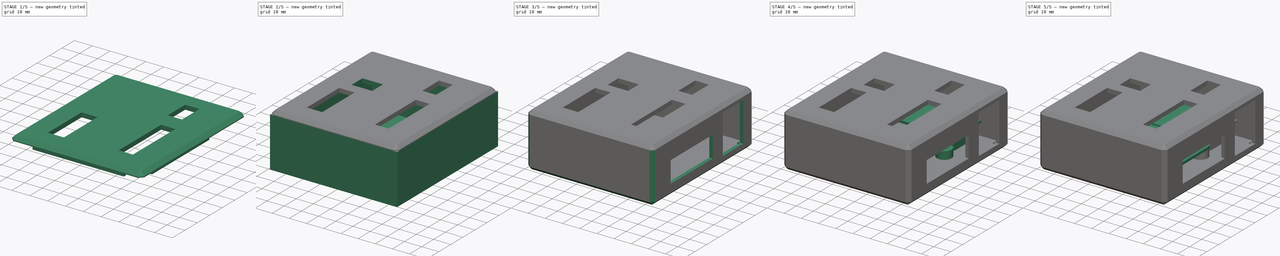
[diagram: build sequence overview — one tinted view per stage of 5, left to right]
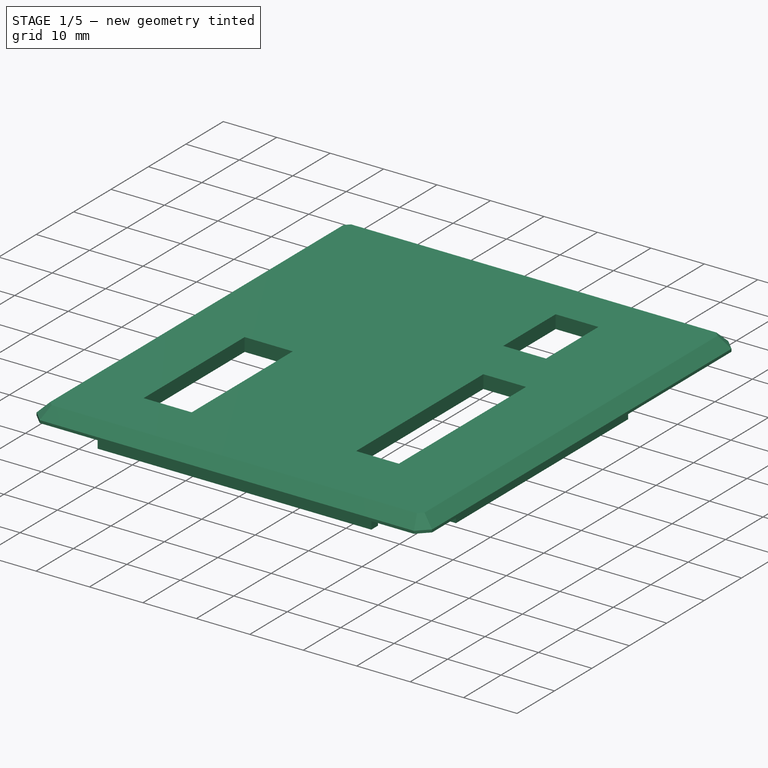
[diagram: stage 1 of 5 — iso view after this stage's code; geometry added in this stage tinted green]
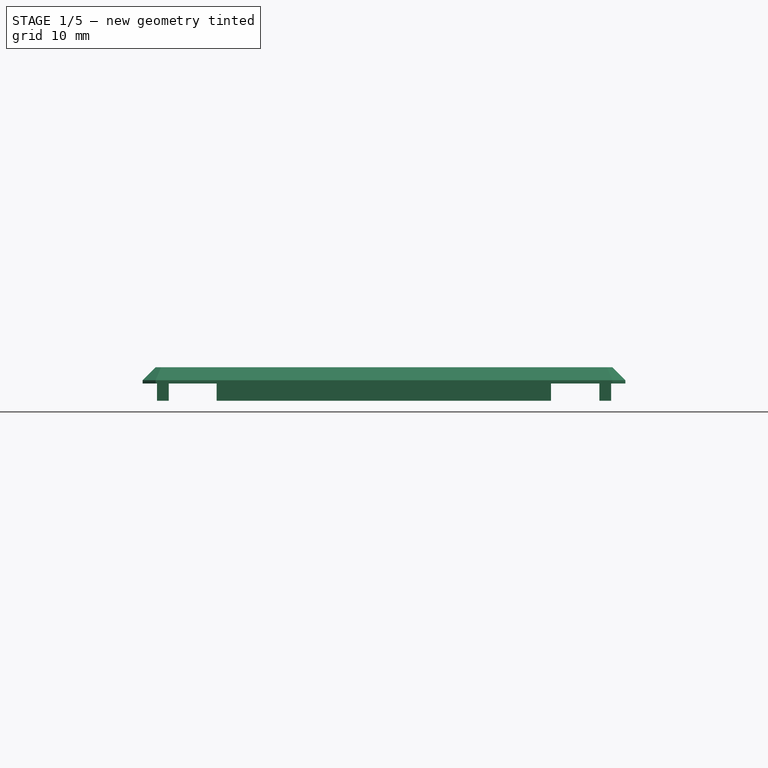
[diagram: stage 1 of 5 — front view after this stage's code; geometry added in this stage tinted green]
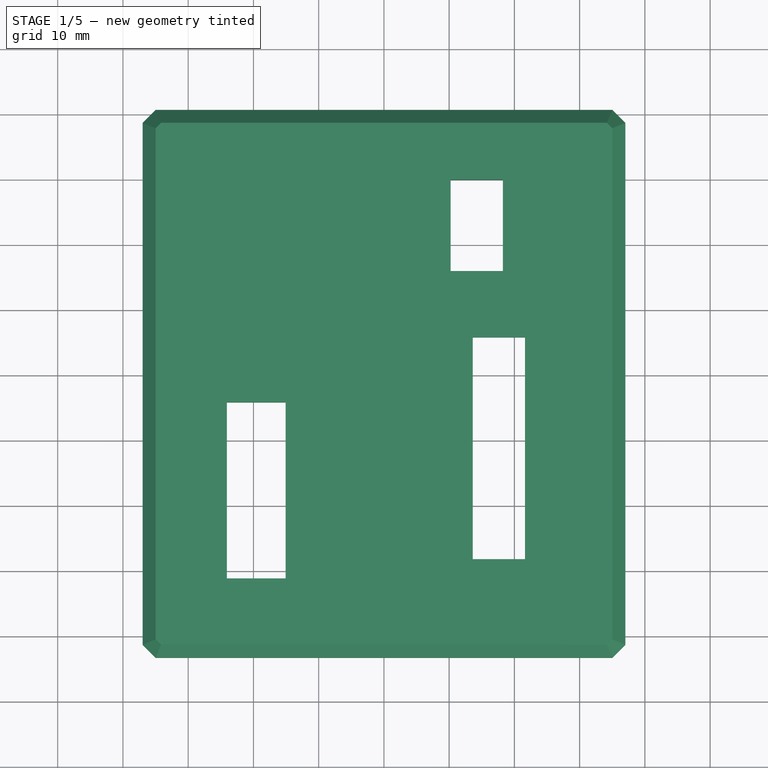
[diagram: stage 1 of 5 — top view after this stage's code; geometry added in this stage tinted green]
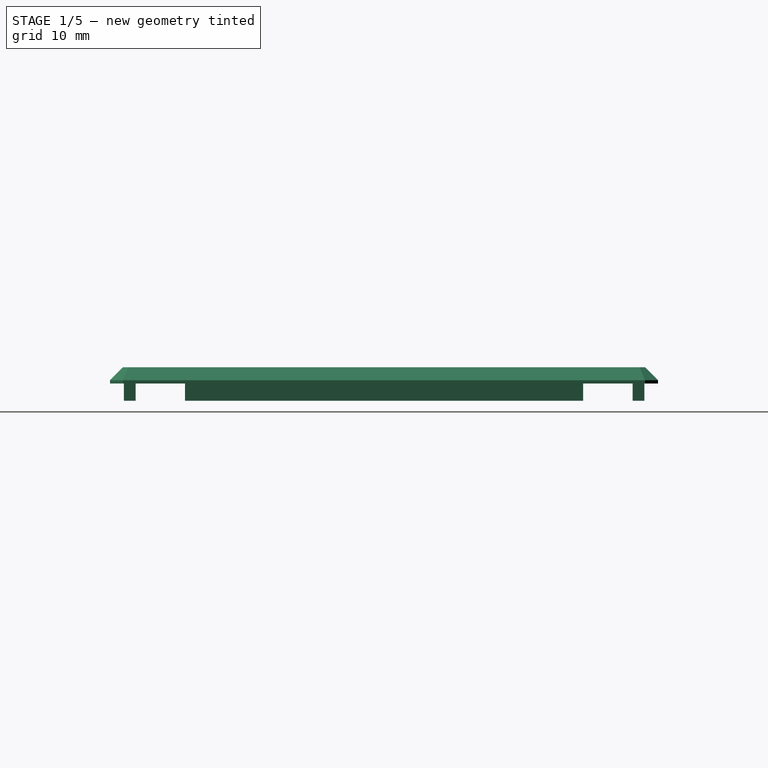
[diagram: stage 1 of 5 — right view after this stage's code; geometry added in this stage tinted green]
FCSTD DOCUMENT  (FreeCAD 0.16R5850 (Git))
Label: chillerModule
License: CreativeCommons Attribution-ShareAlike
LicenseURL: http://creativecommons.org/licenses/by-sa/4.0/
objects: Sketcher::SketchObject×15, PartDesign::Pad×10, Part::Feature×10, PartDesign::Pocket×5, Part::Box×2, PartDesign::Chamfer×2, Part::Thickness×1, Part::Cut×1
note: 61 computed .brp shape members not serialized (recipe doc carries the construction recipe); baked Part::Feature solids carry a one-line shape summary decoded from their .brp

FEATURE [PartDesign::Pad] Pad006
  Length = 2.5
  Length2 = 100
  Placement = pos=(0,0,21) rot=(0,0,1;0rad)
  Sketch = -> Sketch004
  Type = 0
FEATURE [PartDesign::Chamfer] Chamfer001
  Base = -> Pad006 [Edge22,Edge4,Edge7,Edge10,Edge13,Edge16,Edge19,Edge24]
  Placement = pos=(0,0,21) rot=(0,0,1;0rad)
  Size = 2
FEATURE [Sketcher::SketchObject] Sketch006
  Placement = pos=(0,0,23.5) rot=(0,0,1;0rad)
  Support = -> Chamfer001 [Face8]
  sketch-geometry (12):
    g0: LineSegment StartX=10.2266 StartY=39.9616 StartZ=0 EndX=18.2266 EndY=39.9616 EndZ=0
    g1: LineSegment StartX=18.2266 StartY=39.9616 StartZ=0 EndX=18.2266 EndY=25.9616 EndZ=0
    g2: LineSegment StartX=18.2266 StartY=25.9616 StartZ=0 EndX=10.2266 EndY=25.9616 EndZ=0
    g3: LineSegment StartX=10.2266 StartY=25.9616 StartZ=0 EndX=10.2266 EndY=39.9616 EndZ=0
    g4: LineSegment StartX=13.6191 StartY=15.7904 StartZ=0 EndX=21.6191 EndY=15.7904 EndZ=0
    g5: LineSegment StartX=21.6191 StartY=15.7904 StartZ=0 EndX=21.6191 EndY=-18.2096 EndZ=0
    g6: LineSegment StartX=21.6191 StartY=-18.2096 StartZ=0 EndX=13.6191 EndY=-18.2096 EndZ=0
    g7: LineSegment StartX=13.6191 StartY=-18.2096 StartZ=0 EndX=13.6191 EndY=15.7904 EndZ=0
    g8: LineSegment StartX=-24.0652 StartY=5.83576 StartZ=0 EndX=-15.0652 EndY=5.83576 EndZ=0
    g9: LineSegment StartX=-15.0652 StartY=5.83576 StartZ=0 EndX=-15.0652 EndY=-21.1642 EndZ=0
    g10: LineSegment StartX=-15.0652 StartY=-21.1642 StartZ=0 EndX=-24.0652 EndY=-21.1642 EndZ=0
    g11: LineSegment StartX=-24.0652 StartY=-21.1642 StartZ=0 EndX=-24.0652 EndY=5.83576 EndZ=0
  constraints (35):
    c: Coincident(g0,g1)
    c: Coincident(g1,g2)
    c: Coincident(g2,g3)
    c: Coincident(g3,g0)
    c: Horizontal(g0)
    c: Horizontal(g2)
    c: Vertical(g1)
    c: Vertical(g3)
    c: Coincident(g4,g5)
    c: Coincident(g5,g6)
    c: Coincident(g6,g7)
    c: Coincident(g7,g4)
    c: Horizontal(g4)
    c: Horizontal(g6)
    c: Vertical(g5)
    c: Vertical(g7)
    c: Equal(g4,g2)
    c: DistanceX(g6) = -8
    c: DistanceY(g1) = -14
    c: DistanceX(g2) = 10.2266
    c: DistanceY(g2) = 25.9616
    c: DistanceY(g5) = -34
    c: DistanceX(g4) = 13.6191
    c: DistanceY(g4) = 15.7904
    c: Coincident(g8,g9)
    c: Coincident(g9,g10)
    c: Coincident(g10,g11)
    c: Coincident(g11,g8)
    c: Horizontal(g8)
    c: Horizontal(g10)
    c: Vertical(g9)
    c: Vertical(g11)
    c: DistanceY(g9) = -27
    c: DistanceX(g8) = 9
    c: DistanceY(g8) = 5.83576
FEATURE [PartDesign::Pocket] Pocket001
  Length = 5
  Placement = pos=(0,0,21) rot=(0,0,1;0rad)
  Sketch = -> Sketch006
  Type = 0
FEATURE [PartDesign::Pad] Pad007
  Length = 2.65
  Length2 = 100
  Placement = pos=(0,0,21) rot=(0,0,1;0rad)
  Sketch = -> Sketch008
  Type = 0
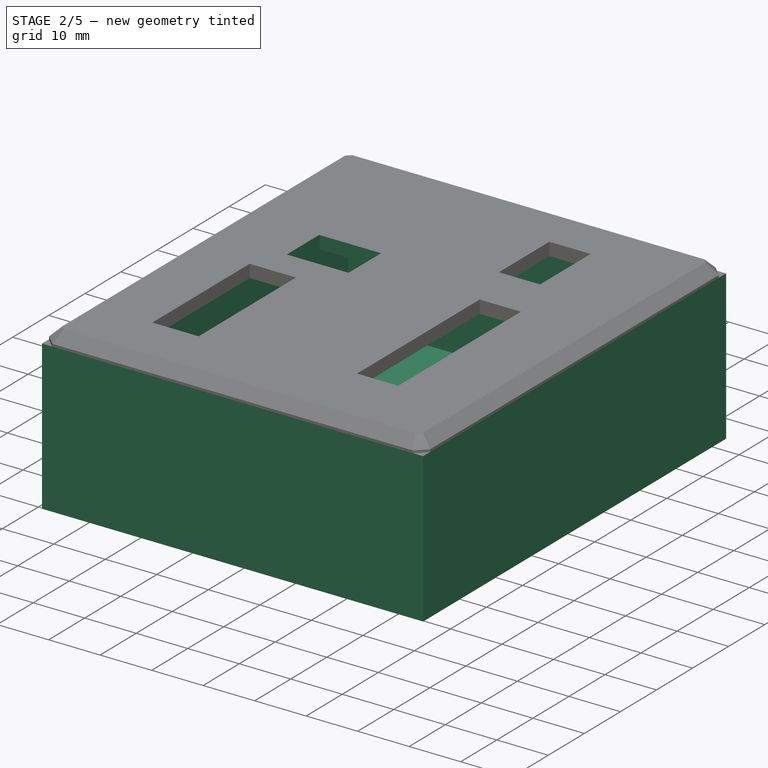
[diagram: stage 2 of 5 — iso view after this stage's code; geometry added in this stage tinted green]
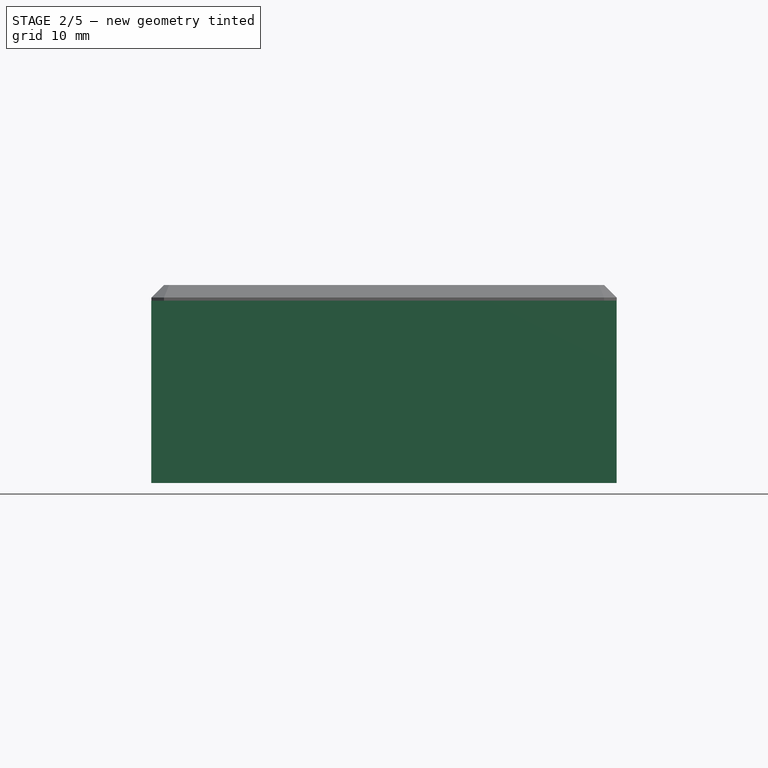
[diagram: stage 2 of 5 — front view after this stage's code; geometry added in this stage tinted green]
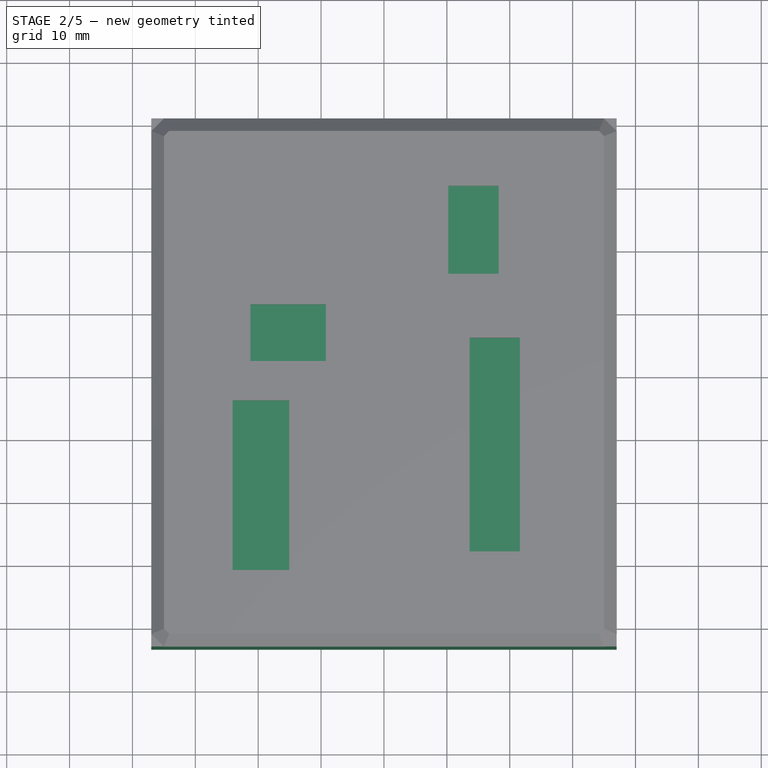
[diagram: stage 2 of 5 — top view after this stage's code; geometry added in this stage tinted green]
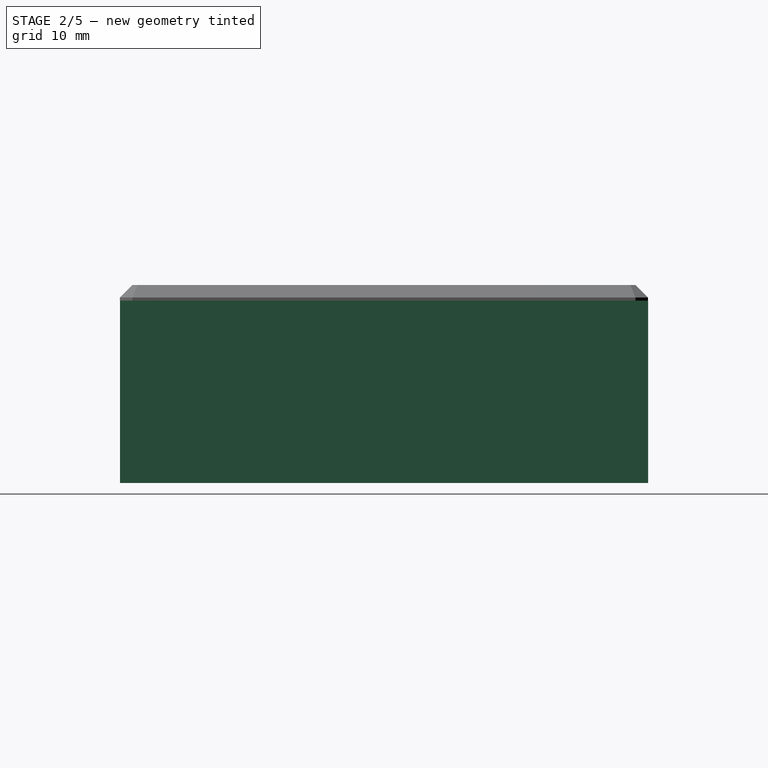
[diagram: stage 2 of 5 — right view after this stage's code; geometry added in this stage tinted green]
FEATURE [Part::Feature] Shape008
  Placement = pos=(14.5066,32.854,9.46815) rot=(0,0,1;0rad)
  shape: bbox 8.348 x 10.6 x 13.8 mm, 106 faces, 5 solids (baked)
FEATURE [Sketcher::SketchObject] Sketch003
  Placement = pos=(0,0,-6) rot=(0,0,1;0rad)
  sketch-geometry (4):
    g0: LineSegment StartX=-35 StartY=48.7097 StartZ=0 EndX=35 EndY=48.7097 EndZ=0
    g1: LineSegment StartX=35 StartY=48.7097 StartZ=0 EndX=35 EndY=-31.2903 EndZ=0
    g2: LineSegment StartX=35 StartY=-31.2903 StartZ=0 EndX=-35 EndY=-31.2903 EndZ=0
    g3: LineSegment StartX=-35 StartY=-31.2903 StartZ=0 EndX=-35 EndY=48.7097 EndZ=0
  constraints (12):
    c: Coincident(g0,g1)
    c: Coincident(g1,g2)
    c: Coincident(g2,g3)
    c: Coincident(g3,g0)
    c: Horizontal(g0)
    c: Horizontal(g2)
    c: Vertical(g1)
    c: Vertical(g3)
    c: Symmetric(g1,g2,g-2)
    c: DistanceX(g2) = -70
    c: DistanceY(g1) = -80
    c: DistanceY(g0) = 48.7097
FEATURE [PartDesign::Pad] Pad003
  Length = 27
  Length2 = 100
  Placement = pos=(0,0,-6) rot=(0,0,1;0rad)
  Sketch = -> Sketch003
  Type = 0
FEATURE [Part::Thickness] Thickness
  Faces = -> Pad003 [Face6]
  Intersection = false
  Join = 2
  Mode = 0
  SelfIntersection = false
  Value = 2
FEATURE [Sketcher::SketchObject] Sketch009
  ExternalGeometry = -> [Pad007]
  Placement = pos=(0,0,18.35) rot=(1,0,0;3.14159rad)
  Support = -> Pad007 [Face49]
  sketch-geometry (16):
    g0: LineSegment StartX=-25.6473 StartY=31.877 StartZ=0 EndX=25.5527 EndY=31.877 EndZ=0
    g1: LineSegment StartX=25.5527 StartY=31.877 StartZ=0 EndX=25.5527 EndY=31.177 EndZ=0
    g2: LineSegment StartX=25.5527 StartY=31.177 StartZ=0 EndX=-25.6473 EndY=31.177 EndZ=0
    g3: LineSegment StartX=-25.6473 StartY=31.177 StartZ=0 EndX=-25.6473 EndY=31.877 EndZ=0
    g4: LineSegment StartX=34.8248 StartY=21.8087 StartZ=0 EndX=35.5248 EndY=21.8087 EndZ=0
    g5: LineSegment StartX=35.5248 StartY=21.8087 StartZ=0 EndX=35.5248 EndY=-24.1913 EndZ=0
    g6: LineSegment StartX=35.5248 StartY=-24.1913 StartZ=0 EndX=34.8248 EndY=-24.1913 EndZ=0
    g7: LineSegment StartX=34.8248 StartY=-24.1913 StartZ=0 EndX=34.8248 EndY=21.8087 EndZ=0
    g8: LineSegment StartX=-25.5983 StartY=-48.5941 StartZ=0 EndX=25.6017 EndY=-48.5941 EndZ=0
    g9: LineSegment StartX=25.6017 StartY=-48.5941 StartZ=0 EndX=25.6017 EndY=-49.2941 EndZ=0
    g10: LineSegment StartX=25.6017 StartY=-49.2941 StartZ=0 EndX=-25.5983 EndY=-49.2941 EndZ=0
    g11: LineSegment StartX=-25.5983 StartY=-49.2941 StartZ=0 EndX=-25.5983 EndY=-48.5941 EndZ=0
    g12: LineSegment StartX=-35.481 StartY=21.7889 StartZ=0 EndX=-34.781 EndY=21.7889 EndZ=0
    g13: LineSegment StartX=-34.781 StartY=21.7889 StartZ=0 EndX=-34.781 EndY=-39.2111 EndZ=0
    g14: LineSegment StartX=-34.781 StartY=-39.2111 StartZ=0 EndX=-35.481 EndY=-39.2111 EndZ=0
    g15: LineSegment StartX=-35.481 StartY=-39.2111 StartZ=0 EndX=-35.481 EndY=21.7889 EndZ=0
  constraints (44):
    c: Coincident(g0,g1)
    c: Coincident(g1,g2)
    c: Coincident(g2,g3)
    c: Coincident(g3,g0)
    c: Horizontal(g0)
    c: Horizontal(g2)
    c: Vertical(g1)
    c: Vertical(g3)
    c: Coincident(g1,g-3)
    c: Coincident(g4,g5)
    c: Coincident(g5,g6)
    c: Coincident(g6,g7)
    c: Coincident(g7,g4)
    c: Horizontal(g4)
    c: Horizontal(g6)
    c: Vertical(g5)
    c: Vertical(g7)
    c: Coincident(g8,g9)
    c: Coincident(g9,g10)
    c: Coincident(g10,g11)
    c: Coincident(g11,g8)
    c: Horizontal(g8)
    c: Horizontal(g10)
    c: Vertical(g9)
    c: Vertical(g11)
    c: Coincident(g12,g13)
    c: Coincident(g13,g14)
    c: Coincident(g14,g15)
    c: Coincident(g15,g12)
    c: Horizontal(g12)
    c: Horizontal(g14)
    c: Vertical(g13)
    c: Vertical(g15)
    c: Coincident(g-5,g4)
    c: Coincident(g6,g-5)
    c: Coincident(g8,g-6)
    c: Coincident(g8,g-6)
    c: Coincident(g12,g-4)
    c: Coincident(g13,g-4)
    c: Coincident(g2,g-3)
    c: Equal(g3,g4)
    c: Equal(g4,g9)
    c: Equal(g9,g14)
    c: DistanceY(g3) = 0.7
FEATURE [PartDesign::Pad] Pad008  label="chillerModule_cap"
  Length = 1.2
  Length2 = 100
  Placement = pos=(0,0,21) rot=(0,0,1;0rad)
  Reversed = true
  Sketch = -> Sketch009
  Type = 0
FEATURE [Sketcher::SketchObject] Sketch014
  Placement = pos=(0,0,23.5) rot=(0,0,1;0rad)
  Support = -> Pad008 [Face8]
  sketch-geometry (4):
    g0: LineSegment StartX=-21.2387 StartY=21.0837 StartZ=0 EndX=-9.23874 EndY=21.0837 EndZ=0
    g1: LineSegment StartX=-9.23874 StartY=21.0837 StartZ=0 EndX=-9.23874 EndY=12.0837 EndZ=0
    g2: LineSegment StartX=-9.23874 StartY=12.0837 StartZ=0 EndX=-21.2387 EndY=12.0837 EndZ=0
    g3: LineSegment StartX=-21.2387 StartY=12.0837 StartZ=0 EndX=-21.2387 EndY=21.0837 EndZ=0
  constraints (12):
    c: Coincident(g0,g1)
    c: Coincident(g1,g2)
    c: Coincident(g2,g3)
    c: Coincident(g3,g0)
    c: Horizontal(g0)
    c: Horizontal(g2)
    c: Vertical(g1)
    c: Vertical(g3)
    c: DistanceY(g1) = -9
    c: DistanceX(g0) = 12
    c: DistanceX(g0) = -21.2387
    c: DistanceY(g2) = 12.0837
FEATURE [PartDesign::Pocket] Pocket004  label="chillerModule_CAP"
  Length = 5
  Placement = pos=(0,0,21) rot=(0,0,1;0rad)
  Sketch = -> Sketch014
  Type = 0
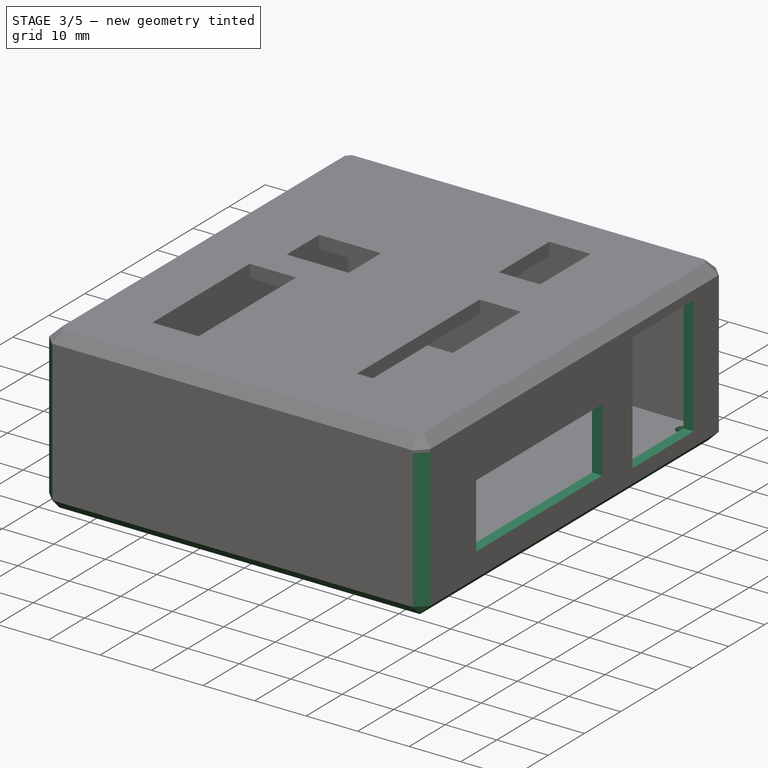
[diagram: stage 3 of 5 — iso view after this stage's code; geometry added in this stage tinted green]
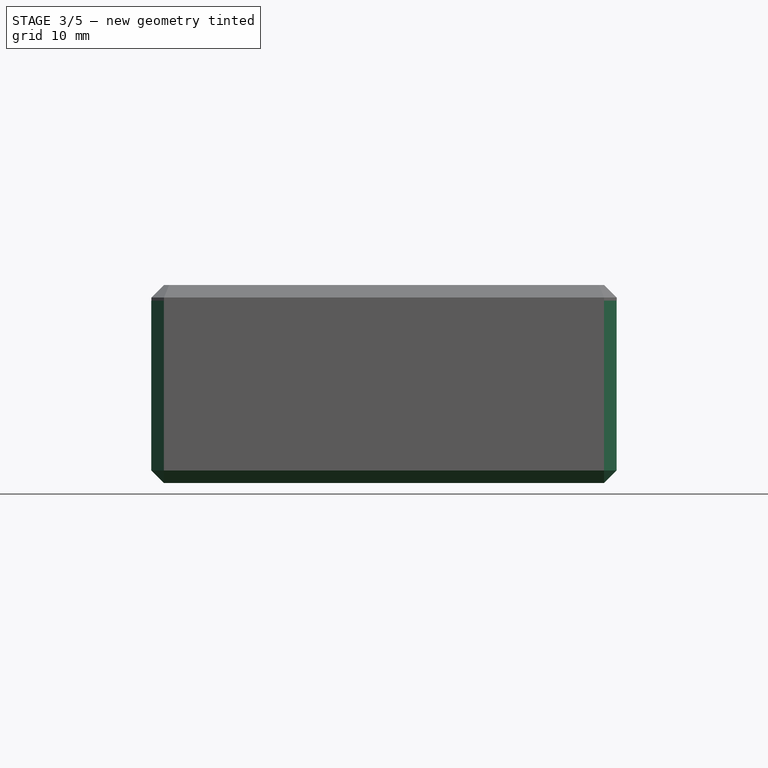
[diagram: stage 3 of 5 — front view after this stage's code; geometry added in this stage tinted green]
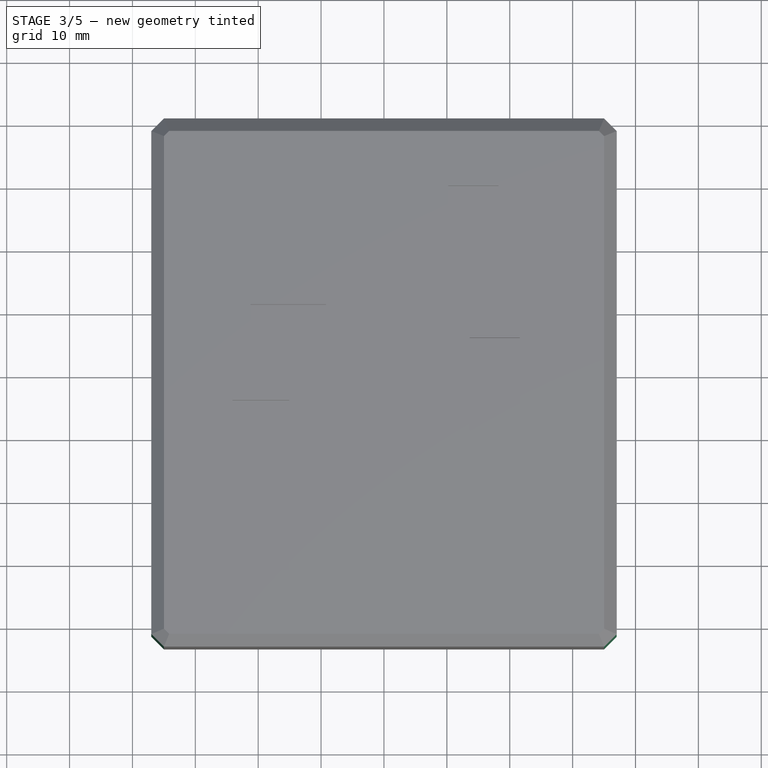
[diagram: stage 3 of 5 — top view after this stage's code; geometry added in this stage tinted green]
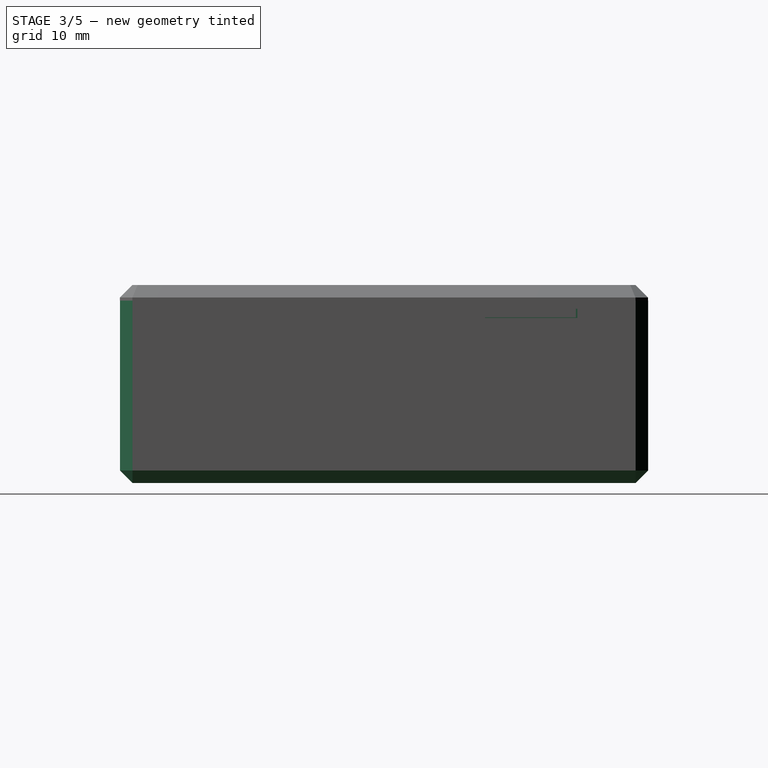
[diagram: stage 3 of 5 — right view after this stage's code; geometry added in this stage tinted green]
FEATURE [Sketcher::SketchObject] Sketch004
  Placement = pos=(0,0,21) rot=(0,0,1;0rad)
  sketch-geometry (8):
    g0: LineSegment StartX=-34.9868 StartY=50.6837 StartZ=0 EndX=35.0132 EndY=50.6837 EndZ=0
    g1: LineSegment StartX=37.0132 StartY=48.6837 StartZ=0 EndX=37.0132 EndY=-31.3163 EndZ=0
    g2: LineSegment StartX=35.0132 StartY=-33.3163 StartZ=0 EndX=-34.9868 EndY=-33.3163 EndZ=0
    g3: LineSegment StartX=-36.9868 StartY=-31.3163 StartZ=0 EndX=-36.9868 EndY=48.6837 EndZ=0
    g4: LineSegment StartX=-36.9868 StartY=48.6837 StartZ=0 EndX=-34.9868 EndY=50.6837 EndZ=0
    g5: LineSegment StartX=35.0132 StartY=50.6837 StartZ=0 EndX=37.0132 EndY=48.6837 EndZ=0
    g6: LineSegment StartX=37.0132 StartY=-31.3163 StartZ=0 EndX=35.0132 EndY=-33.3163 EndZ=0
    g7: LineSegment StartX=-36.9868 StartY=-31.3163 StartZ=0 EndX=-34.9868 EndY=-33.3163 EndZ=0
  constraints (25):
    c: Vertical(g1)
    c: Vertical(g3)
    c: DistanceX(g0) = 70
    c: DistanceY(g1) = -80
    c: DistanceX(g2) = 35.0132
    c: DistanceY(g2) = -33.3163
    c: Equal(g4,g5)
    c: Equal(g5,g6)
    c: Equal(g0,g2)
    c: Equal(g3,g1)
    c: Coincident(g7,g3)
    c: Coincident(g7,g2)
    c: Equal(g7,g6)
    c: Angle(g0,g5) = 2.35619
    c: Angle(g6,g2) = 2.35619
    c: DistanceX(g3) = -36.9868
    c: Coincident(g0,g5)
    c: Coincident(g5,g1)
    c: Horizontal(g0)
    c: Horizontal(g2)
    c: Coincident(g0,g4)
    c: Coincident(g4,g3)
    c: Angle(g3,g4) = 2.35619
    c: Coincident(g6,g1)
    c: Coincident(g2,g6)
FEATURE [Sketcher::SketchObject] Sketch005
  Placement = pos=(37,0,0) rot=(0.57735,0.57735,0.57735;2.0944rad)
  Support = -> Thickness [Face8]
  sketch-geometry (8):
    g0: LineSegment StartX=-18.6016 StartY=11.16 StartZ=0 EndX=16.3984 EndY=11.16 EndZ=0
    g1: LineSegment StartX=16.3984 StartY=11.16 StartZ=0 EndX=16.3984 EndY=-1.34004 EndZ=0
    g2: LineSegment StartX=16.3984 StartY=-1.34004 StartZ=0 EndX=-18.6016 EndY=-1.34004 EndZ=0
    g3: LineSegment StartX=-18.6016 StartY=-1.34004 StartZ=0 EndX=-18.6016 EndY=11.16 EndZ=0
    g4: LineSegment StartX=24.7585 StartY=19.7155 StartZ=0 EndX=41.7585 EndY=19.7155 EndZ=0
    g5: LineSegment StartX=41.7585 StartY=19.7155 StartZ=0 EndX=41.7585 EndY=-3.28454 EndZ=0
    g6: LineSegment StartX=41.7585 StartY=-3.28454 StartZ=0 EndX=24.7585 EndY=-3.28454 EndZ=0
    g7: LineSegment StartX=24.7585 StartY=-3.28454 StartZ=0 EndX=24.7585 EndY=19.7155 EndZ=0
  constraints (24):
    c: Coincident(g0,g1)
    c: Coincident(g1,g2)
    c: Coincident(g2,g3)
    c: Coincident(g3,g0)
    c: Horizontal(g0)
    c: Horizontal(g2)
    c: Vertical(g1)
    c: Vertical(g3)
    c: Coincident(g4,g5)
    c: Coincident(g5,g6)
    c: Coincident(g6,g7)
    c: Coincident(g7,g4)
    c: Horizontal(g4)
    c: Horizontal(g6)
    c: Vertical(g5)
    c: Vertical(g7)
    c: DistanceY(g3) = 12.5
    c: DistanceX(g0) = 35
    c: DistanceX(g0) = -18.6016
    c: DistanceY(g0) = 11.16
    c: DistanceY(g7) = 23
    c: DistanceX(g4) = 17
    c: DistanceX(g4) = 24.7585
    c: DistanceY(g4) = 19.7155
FEATURE [Sketcher::SketchObject] Sketch007
  Placement = pos=(0,0,19) rot=(0,0,1;0rad)
  sketch-geometry (12):
    g0: LineSegment StartX=-35.737 StartY=39.4557 StartZ=0 EndX=-25.7788 EndY=39.4557 EndZ=0
    g1: LineSegment StartX=-25.7788 StartY=39.4557 StartZ=0 EndX=-25.7788 EndY=49.4139 EndZ=0
    g2: LineSegment StartX=-25.7788 StartY=49.4139 StartZ=0 EndX=25.7788 EndY=49.4139 EndZ=0
    g3: LineSegment StartX=25.7788 StartY=49.4139 StartZ=0 EndX=25.7788 EndY=39.4557 EndZ=0
    g4: LineSegment StartX=25.7788 StartY=39.4557 StartZ=0 EndX=35.737 EndY=39.4557 EndZ=0
    g5: LineSegment StartX=35.737 StartY=39.4557 StartZ=0 EndX=35.737 EndY=-22.0418 EndZ=0
    g6: LineSegment StartX=35.737 StartY=-22.0418 StartZ=0 EndX=25.7788 EndY=-22.0418 EndZ=0
    g7: LineSegment StartX=25.7788 StartY=-22.0418 StartZ=0 EndX=25.7788 EndY=-32 EndZ=0
    g8: LineSegment StartX=25.7788 StartY=-32 StartZ=0 EndX=-25.7788 EndY=-32 EndZ=0
    g9: LineSegment StartX=-25.7788 StartY=-32 StartZ=0 EndX=-25.7788 EndY=-22.0418 EndZ=0
    g10: LineSegment StartX=-25.7788 StartY=-22.0418 StartZ=0 EndX=-35.737 EndY=-22.0418 EndZ=0
    g11: LineSegment StartX=-35.737 StartY=-22.0418 StartZ=0 EndX=-35.737 EndY=39.4557 EndZ=0
  constraints (37):
    c: Coincident(g0,g1)
    c: Coincident(g1,g2)
    c: Horizontal(g2)
    c: Coincident(g2,g3)
    c: Vertical(g3)
    c: Coincident(g3,g4)
    c: Horizontal(g4)
    c: Coincident(g4,g5)
    c: Vertical(g5)
    c: Coincident(g5,g6)
    c: Coincident(g6,g7)
    c: Coincident(g7,g8)
    c: Horizontal(g8)
    c: Coincident(g8,g9)
    c: Vertical(g9)
    c: Coincident(g9,g10)
    c: Coincident(g10,g11)
    c: Coincident(g11,g0)
    c: Vertical(g11)
    c: Horizontal(g0)
    c: Horizontal(g6)
    c: Vertical(g1)
    c: Vertical(g7)
    c: Equal(g2,g8)
    c: Equal(g11,g5)
    c: Equal(g0,g1)
    c: Equal(g1,g4)
    c: Equal(g4,g3)
    c: Equal(g3,g6)
    c: Equal(g6,g7)
    c: Equal(g7,g9)
    c: Equal(g9,g10)
    c: Symmetric(g8,g7,g-2)
    c: DistanceY(g7) = -32
    c: DistanceX(g5) = 35.737
    c: DistanceX(g6) = 25.7788
    c: DistanceY(g2) = 49.4139
FEATURE [PartDesign::Pad] Pad005
  Length = 1.5
  Length2 = 100
  Midplane = true
  Placement = pos=(0,0,19) rot=(0,0,1;0rad)
  Sketch = -> Sketch007
  Type = 0
FEATURE [PartDesign::Pocket] Pocket
  Length = 5
  Sketch = -> Sketch005
  Type = 0
FEATURE [PartDesign::Chamfer] Chamfer  label="chillerModule_"
  Base = -> Pocket [Edge46,Edge48,Edge47,Edge45,Edge41,Edge44,Edge43,Edge42]
  Size = 2
FEATURE [Sketcher::SketchObject] Sketch008
  Placement = pos=(0,0,21) rot=(1,0,0;3.14159rad)
  Support = -> Pocket001 [Face4]
  sketch-geometry (16):
    g0: LineSegment StartX=-25.6473 StartY=31.177 StartZ=0 EndX=25.5527 EndY=31.177 EndZ=0
    g1: LineSegment StartX=25.5527 StartY=31.177 StartZ=0 EndX=25.5527 EndY=29.377 EndZ=0
    g2: LineSegment StartX=25.5527 StartY=29.377 StartZ=0 EndX=-25.6473 EndY=29.377 EndZ=0
    g3: LineSegment StartX=-25.6473 StartY=29.377 StartZ=0 EndX=-25.6473 EndY=31.177 EndZ=0
    g4: LineSegment StartX=33.0248 StartY=21.8087 StartZ=0 EndX=34.8248 EndY=21.8087 EndZ=0
    g5: LineSegment StartX=34.8248 StartY=21.8087 StartZ=0 EndX=34.8248 EndY=-24.1913 EndZ=0
    g6: LineSegment StartX=34.8248 StartY=-24.1913 StartZ=0 EndX=33.0248 EndY=-24.1913 EndZ=0
    g7: LineSegment StartX=33.0248 StartY=-24.1913 StartZ=0 EndX=33.0248 EndY=21.8087 EndZ=0
    g8: LineSegment StartX=-25.5983 StartY=-46.7941 StartZ=0 EndX=25.6017 EndY=-46.7941 EndZ=0
    g9: LineSegment StartX=25.6017 StartY=-46.7941 StartZ=0 EndX=25.6017 EndY=-48.5941 EndZ=0
    g10: LineSegment StartX=25.6017 StartY=-48.5941 StartZ=0 EndX=-25.5983 EndY=-48.5941 EndZ=0
    g11: LineSegment StartX=-25.5983 StartY=-48.5941 StartZ=0 EndX=-25.5983 EndY=-46.7941 EndZ=0
    g12: LineSegment StartX=-34.781 StartY=21.7889 StartZ=0 EndX=-32.981 EndY=21.7889 EndZ=0
    g13: LineSegment StartX=-32.981 StartY=21.7889 StartZ=0 EndX=-32.981 EndY=-39.2111 EndZ=0
    g14: LineSegment StartX=-32.981 StartY=-39.2111 StartZ=0 EndX=-34.781 EndY=-39.2111 EndZ=0
    g15: LineSegment StartX=-34.781 StartY=-39.2111 StartZ=0 EndX=-34.781 EndY=21.7889 EndZ=0
  constraints (48):
    c: Coincident(g0,g1)
    c: Coincident(g1,g2)
    c: Coincident(g2,g3)
    c: Coincident(g3,g0)
    c: Horizontal(g0)
    c: Horizontal(g2)
    c: Vertical(g1)
    c: Vertical(g3)
    c: Coincident(g4,g5)
    c: Coincident(g5,g6)
    c: Coincident(g6,g7)
    c: Coincident(g7,g4)
    c: Horizontal(g4)
    c: Horizontal(g6)
    c: Vertical(g5)
    c: Vertical(g7)
    c: Coincident(g8,g9)
    c: Coincident(g9,g10)
    c: Coincident(g10,g11)
    c: Coincident(g11,g8)
    c: Horizontal(g8)
    c: Horizontal(g10)
    c: Vertical(g9)
    c: Vertical(g11)
    c: Coincident(g12,g13)
    c: Coincident(g13,g14)
    c: Coincident(g14,g15)
    c: Coincident(g15,g12)
    c: Horizontal(g12)
    c: Horizontal(g14)
    c: Vertical(g13)
    c: Vertical(g15)
    c: Equal(g12,g3)
    c: Equal(g3,g4)
    c: Equal(g4,g11)
    c: Equal(g8,g2)
    c: DistanceY(g3) = 1.8
    c: DistanceX(g0) = -25.6473
    c: DistanceY(g0) = 31.177
    c: DistanceX(g2) = -51.2
    c: DistanceX(g4) = 34.8248
    c: DistanceY(g4) = 21.8087
    c: DistanceY(g7) = 46
    c: DistanceX(g9) = 25.6017
    c: DistanceY(g9) = -48.5941
    c: DistanceX(g12) = -34.781
    c: DistanceY(g12) = 21.7889
    c: DistanceY(g13) = -61
FEATURE [Part::Cut] Cut  label="chillerModule__"
  Base = -> Chamfer
  Tool = -> Pad005
FEATURE [Sketcher::SketchObject] Sketch010
  Placement = pos=(0,0,-6) rot=(0,0,1;0rad)
  Support = -> Cut [Face30]
  sketch-geometry (18):
    g0: Circle CenterX=-32.1 CenterY=46.2079 CenterZ=0 NormalX=0 NormalY=0 NormalZ=1 Radius=1.5
    g1: Circle CenterX=32.1 CenterY=46.2079 CenterZ=0 NormalX=0 NormalY=0 NormalZ=1 Radius=1.5
    g2: Circle CenterX=32.1 CenterY=-28.698 CenterZ=0 NormalX=0 NormalY=0 NormalZ=1 Radius=1.5
    g3: Circle CenterX=-32.1 CenterY=-28.698 CenterZ=0 NormalX=0 NormalY=0 NormalZ=1 Radius=1.5
    g4: LineSegment [constr] StartX=-30.7 StartY=43.783 StartZ=0 EndX=-29.3 EndY=46.2079 EndZ=0
    g5: LineSegment [constr] StartX=-29.3 StartY=46.2079 StartZ=0 EndX=-30.7 EndY=48.6328 EndZ=0
    g6: LineSegment [constr] StartX=-30.7 StartY=48.6328 StartZ=0 EndX=-33.5 EndY=48.6328 EndZ=0
    g7: LineSegment [constr] StartX=-33.5 StartY=48.6328 StartZ=0 EndX=-34.9 EndY=46.2079 EndZ=0
    g8: LineSegment [constr] StartX=-34.9 StartY=46.2079 StartZ=0 EndX=-33.5 EndY=43.783 EndZ=0
    g9: LineSegment [constr] StartX=-33.5 StartY=43.783 StartZ=0 EndX=-30.7 EndY=43.783 EndZ=0
    g10: Circle [constr] CenterX=-32.1 CenterY=46.2079 CenterZ=0 NormalX=0 NormalY=0 NormalZ=1 Radius=2.8
    g11: LineSegment [constr] StartX=-30.7 StartY=-31.1229 StartZ=0 EndX=-29.3 EndY=-28.698 EndZ=0
    g12: LineSegment [constr] StartX=-29.3 StartY=-28.698 StartZ=0 EndX=-30.7 EndY=-26.2732 EndZ=0
    g13: LineSegment [constr] StartX=-30.7 StartY=-26.2732 StartZ=0 EndX=-33.5 EndY=-26.2732 EndZ=0
    g14: LineSegment [constr] StartX=-33.5 StartY=-26.2732 StartZ=0 EndX=-34.9 EndY=-28.698 EndZ=0
    g15: LineSegment [constr] StartX=-34.9 StartY=-28.698 StartZ=0 EndX=-33.5 EndY=-31.1229 EndZ=0
    g16: LineSegment [constr] StartX=-33.5 StartY=-31.1229 StartZ=0 EndX=-30.7 EndY=-31.1229 EndZ=0
    g17: Circle [constr] CenterX=-32.1 CenterY=-28.698 CenterZ=0 NormalX=0 NormalY=0 NormalZ=1 Radius=2.8
  constraints (42):
    c: Equal(g3,g0)
    c: Equal(g0,g1)
    c: Equal(g1,g2)
    c: Symmetric(g0,g1,g-2)
    c: Symmetric(g3,g2,g-2)
    c: Radius(g0) = 1.5
    c: Coincident(g4,g5)
    c: Coincident(g5,g6)
    c: Coincident(g6,g7)
    c: Coincident(g7,g8)
    c: Coincident(g8,g9)
    c: Coincident(g9,g4)
    c: Equal(g4, g5-g9) x5
    c: PointOnObject(g4,g10)
    c: PointOnObject(g5,g10)
    c: PointOnObject(g6,g10)
    c: PointOnObject(g7,g10)
    c: PointOnObject(g8,g10)
    c: PointOnObject(g9,g10)
    c: Coincident(g10,g0)
    c: DistanceX(g7,g4) = 5.6
    c: Horizontal(g6)
    c: DistanceX(g0) = -32.1
    c: DistanceY(g0) = 46.2079
    c: Coincident(g11,g12)
    c: Coincident(g12,g13)
    c: Coincident(g13,g14)
    c: Coincident(g14,g15)
    c: Coincident(g15,g16)
    c: Coincident(g16,g11)
    c: Equal(g11, g12-g16) x5
    c: PointOnObject(g11,g17)
    c: PointOnObject(g12,g17)
    c: PointOnObject(g13,g17)
    c: PointOnObject(g14,g17)
    c: PointOnObject(g15,g17)
    c: PointOnObject(g16,g17)
    c: Coincident(g3,g17)
    c: Horizontal(g13)
    c: DistanceX(g14,g11) = 5.6
    c: DistanceX(g3) = -32.1
    c: DistanceY(g3) = -28.698
FEATURE [PartDesign::Pocket] Pocket002  label="chillerModule"
  Length = 5
  Sketch = -> Sketch010
  Type = 0
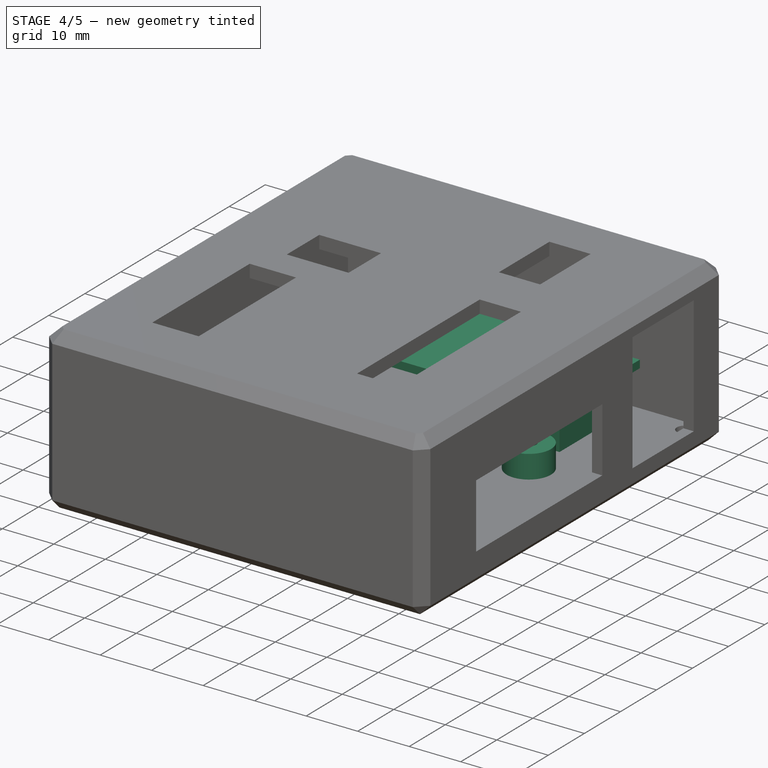
[diagram: stage 4 of 5 — iso view after this stage's code; geometry added in this stage tinted green]
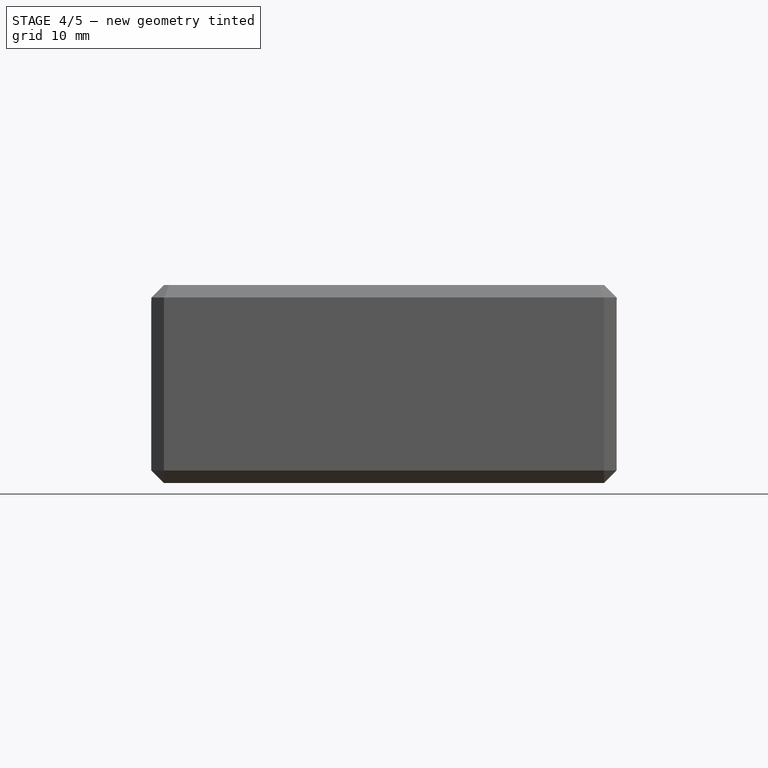
[diagram: stage 4 of 5 — front view after this stage's code; geometry added in this stage tinted green]
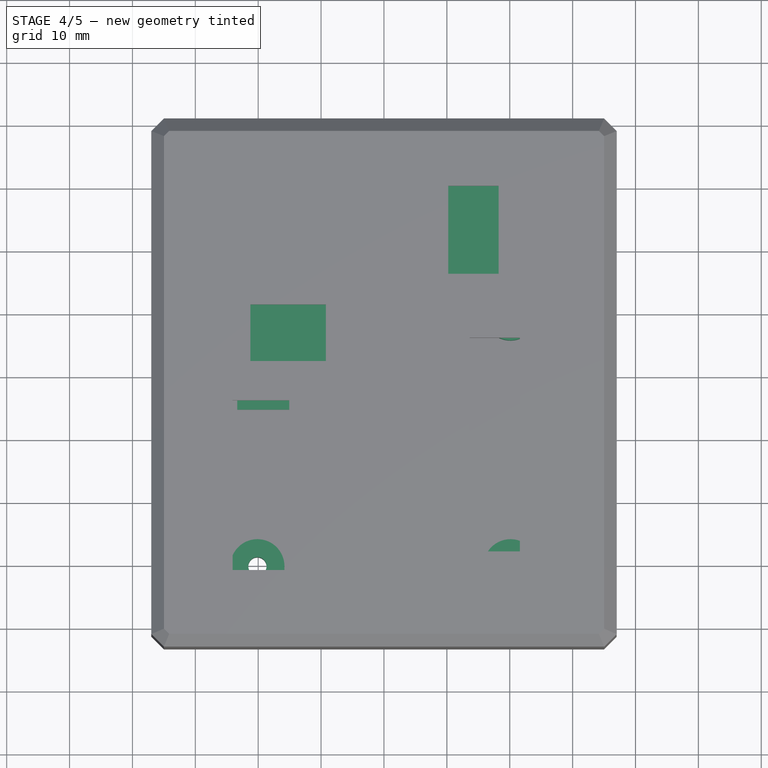
[diagram: stage 4 of 5 — top view after this stage's code; geometry added in this stage tinted green]
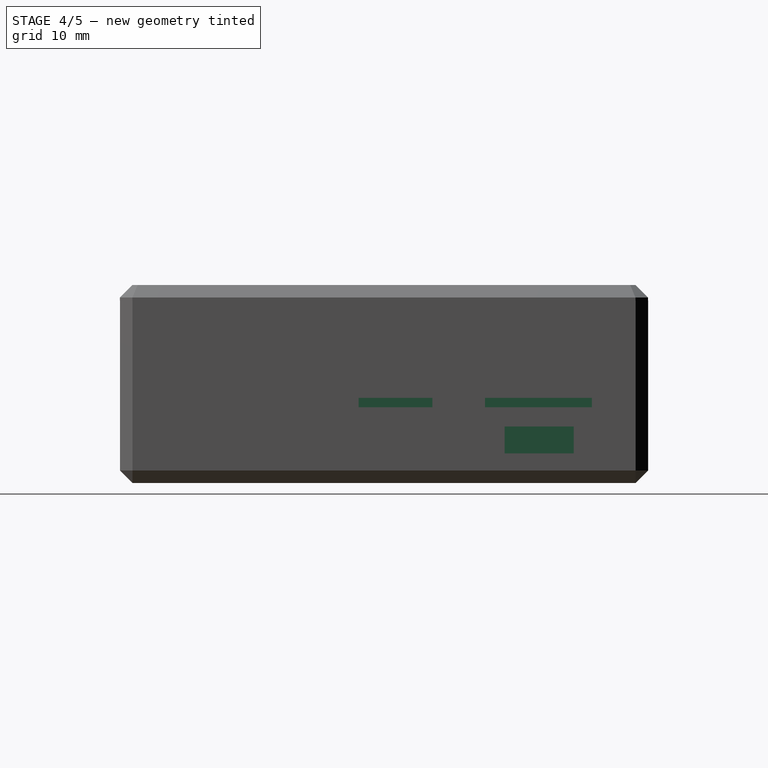
[diagram: stage 4 of 5 — right view after this stage's code; geometry added in this stage tinted green]
FEATURE [Part::Feature] Shape004  label="headers_pins"
  Placement = pos=(-17.8285,7.7898,1.43355e-06) rot=(0,0,1;1.5708rad)
  shape: bbox 2.54 x 10.16 x 11.2 mm, 144 faces, 8 solids (baked)
FEATURE [Part::Feature] Shape005  label="led"
  Placement = pos=(-19.7161,-14.7645,1.53444e-07) rot=(0,0,1;0rad)
  shape: bbox 5.8 x 5.8 x 10.28 mm, 25 faces, 3 solids (baked)
FEATURE [Part::Feature] Shape006  label="led001"
  Placement = pos=(-19.7161,-7.58684,4.92624e-06) rot=(0,0,1;0rad)
  shape: bbox 5.8 x 5.8 x 10.28 mm, 25 faces, 3 solids (baked)
FEATURE [Part::Feature] Shape007  label="led002"
  Placement = pos=(-19.7161,-0.447337,3.03533e-06) rot=(0,0,1;0rad)
  shape: bbox 5.8 x 5.8 x 10.28 mm, 25 faces, 3 solids (baked)
FEATURE [Sketcher::SketchObject] Sketch001
  Placement = pos=(0,0,4.8) rot=(0,0,1;0rad)
  sketch-geometry (6):
    g0: LineSegment StartX=-23.3279 StartY=4.65649 StartZ=0 EndX=-23.3279 EndY=43.4065 EndZ=0
    g1: LineSegment StartX=-23.3279 StartY=43.4065 StartZ=0 EndX=25.3721 EndY=43.4065 EndZ=0
    g2: LineSegment StartX=25.3721 StartY=43.4065 StartZ=0 EndX=25.3721 EndY=21.1065 EndZ=0
    g3: LineSegment StartX=25.3721 StartY=21.1065 StartZ=0 EndX=-7.3279 EndY=21.1065 EndZ=0
    g4: LineSegment StartX=-7.3279 StartY=21.1065 StartZ=0 EndX=-7.3279 EndY=4.65649 EndZ=0
    g5: LineSegment StartX=-7.3279 StartY=4.65649 StartZ=0 EndX=-23.3279 EndY=4.65649 EndZ=0
  constraints (18):
    c: Vertical(g0)
    c: Coincident(g0,g1)
    c: Horizontal(g1)
    c: Coincident(g1,g2)
    c: Vertical(g2)
    c: Coincident(g2,g3)
    c: Horizontal(g3)
    c: Coincident(g3,g4)
    c: Vertical(g4)
    c: Coincident(g4,g5)
    c: Horizontal(g5)
    c: Coincident(g5,g0)
    c: DistanceX(g1) = 48.7
    c: DistanceX(g5) = -16
    c: DistanceX(g0) = -23.3279
    c: DistanceY(g0) = 4.65649
    c: DistanceY(g0) = 38.75
    c: DistanceY(g2) = -22.3
FEATURE [PartDesign::Pad] Pad001
  Length = 1.5
  Length2 = 100
  Midplane = true
  Placement = pos=(0,0,4.8) rot=(0,0,1;0rad)
  Sketch = -> Sketch001
  Type = 0
FEATURE [Sketcher::SketchObject] Sketch011
  Placement = pos=(0,0,-6) rot=(0,0,1;0rad)
  Support = -> Pocket002 [Face30]
  sketch-geometry (8):
    g0: Circle CenterX=20.1255 CenterY=-20.1227 CenterZ=0 NormalX=0 NormalY=0 NormalZ=1 Radius=4.3
    g1: Circle CenterX=-20.1255 CenterY=-20.1227 CenterZ=0 NormalX=0 NormalY=0 NormalZ=1 Radius=4.3
    g2: Circle CenterX=-20.1255 CenterY=20.1227 CenterZ=0 NormalX=0 NormalY=0 NormalZ=1 Radius=4.3
    g3: Circle CenterX=20.1255 CenterY=20.1227 CenterZ=0 NormalX=0 NormalY=0 NormalZ=1 Radius=4.3
    g4: Circle CenterX=-20.1255 CenterY=-20.1227 CenterZ=0 NormalX=0 NormalY=0 NormalZ=1 Radius=1.45
    g5: Circle CenterX=20.1255 CenterY=-20.1227 CenterZ=0 NormalX=0 NormalY=0 NormalZ=1 Radius=1.45
    g6: Circle CenterX=20.1255 CenterY=20.1227 CenterZ=0 NormalX=0 NormalY=0 NormalZ=1 Radius=1.45
    g7: Circle CenterX=-20.1255 CenterY=20.1227 CenterZ=0 NormalX=0 NormalY=0 NormalZ=1 Radius=1.45
  constraints (17):
    c: Equal(g3,g2)
    c: Equal(g2,g1)
    c: Equal(g1,g0)
    c: Coincident(g4,g1)
    c: Coincident(g5,g0)
    c: Coincident(g6,g3)
    c: Coincident(g7,g2)
    c: Equal(g4,g5)
    c: Equal(g5,g7)
    c: Equal(g7,g6)
    c: Radius(g5) = 1.45
    c: DistanceX(g0) = 20.1255
    c: DistanceY(g0) = -20.1227
    c: Symmetric(g0,g1,g-2)
    c: Symmetric(g3,g0,g-1)
    c: Symmetric(g3,g2,g-2)
    c: Radius(g3) = 4.3
FEATURE [PartDesign::Pad] Pad009
  Length = 4.5
  Length2 = 100
  Sketch = -> Sketch011
  Type = 0
FEATURE [Sketcher::SketchObject] Sketch012
  Placement = pos=(0,0,-6) rot=(0,0,1;0rad)
  Support = -> Pad009 [Face30]
  sketch-geometry (4):
    g0: LineSegment StartX=17.6412 StartY=38.8817 StartZ=0 EndX=20.6412 EndY=38.8817 EndZ=0
    g1: LineSegment StartX=20.6412 StartY=38.8817 StartZ=0 EndX=20.6412 EndY=27.8817 EndZ=0
    g2: LineSegment StartX=20.6412 StartY=27.8817 StartZ=0 EndX=17.6412 EndY=27.8817 EndZ=0
    g3: LineSegment StartX=17.6412 StartY=27.8817 StartZ=0 EndX=17.6412 EndY=38.8817 EndZ=0
  constraints (12):
    c: Coincident(g0,g1)
    c: Coincident(g1,g2)
    c: Coincident(g2,g3)
    c: Coincident(g3,g0)
    c: Horizontal(g0)
    c: Horizontal(g2)
    c: Vertical(g1)
    c: Vertical(g3)
    c: DistanceX(g2) = -3
    c: DistanceY(g3) = 11
    c: DistanceX(g0) = 20.6412
    c: DistanceY(g0) = 38.8817
FEATURE [PartDesign::Pad] Pad010  label="chillerModule_case"
  Length = 7
  Length2 = 100
  Sketch = -> Sketch012
  Type = 0
FEATURE [Sketcher::SketchObject] Sketch013
  ExternalGeometry = -> [Pad010]
  Placement = pos=(0,0,-6) rot=(0,0,1;0rad)
  Support = -> Pad010 [Face73]
  sketch-geometry (4):
    g0: Circle CenterX=20.1255 CenterY=20.1227 CenterZ=0 NormalX=0 NormalY=0 NormalZ=1 Radius=1.45
    g1: Circle CenterX=-20.1255 CenterY=20.1227 CenterZ=0 NormalX=0 NormalY=0 NormalZ=1 Radius=1.45
    g2: Circle CenterX=-20.1255 CenterY=-20.1227 CenterZ=0 NormalX=0 NormalY=0 NormalZ=1 Radius=1.45
    g3: Circle CenterX=20.1255 CenterY=-20.1227 CenterZ=0 NormalX=0 NormalY=0 NormalZ=1 Radius=1.45
  constraints (8):
    c: Coincident(g0,g-3)
    c: Coincident(g1,g-6)
    c: Coincident(g2,g-4)
    c: Coincident(g3,g-5)
    c: Equal(g0,g1)
    c: Equal(g1,g2)
    c: Equal(g2,g3)
    c: Equal(g3,g-5)
FEATURE [PartDesign::Pocket] Pocket003  label="chillerModule_CASE"
  Length = 5
  Sketch = -> Sketch013
  Type = 0
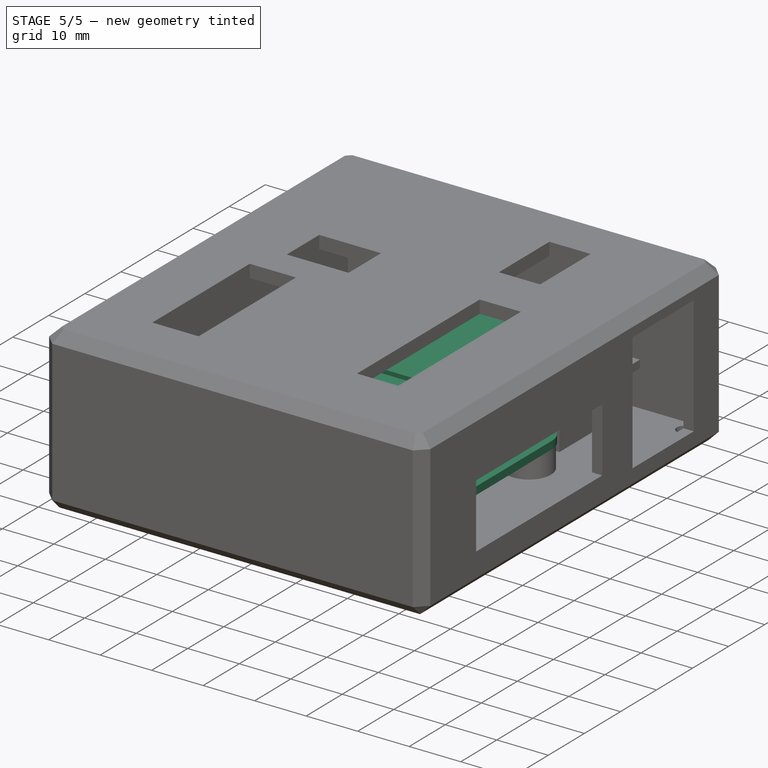
[diagram: stage 5 of 5 — iso view after this stage's code; geometry added in this stage tinted green]
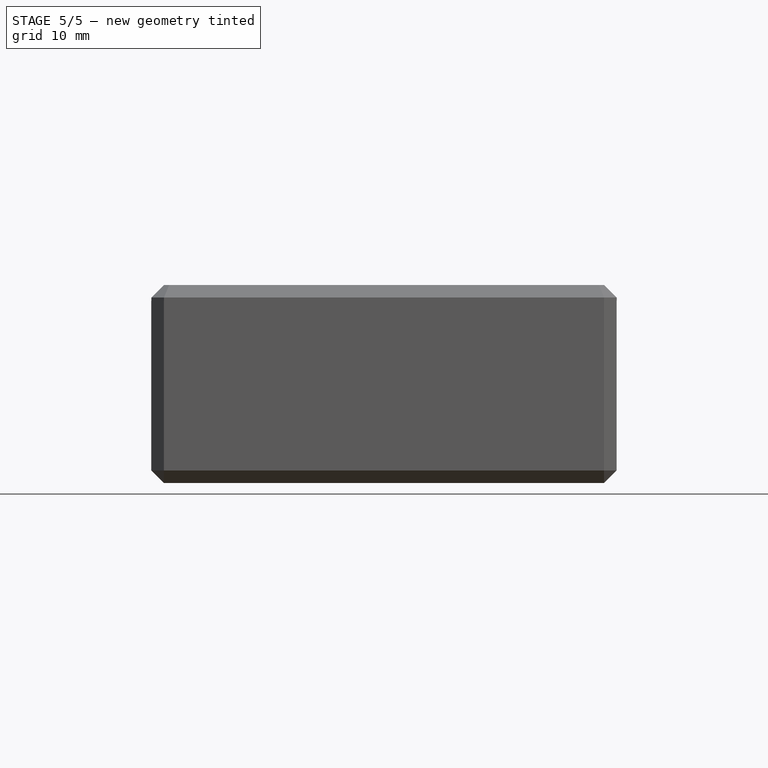
[diagram: stage 5 of 5 — front view after this stage's code; geometry added in this stage tinted green]
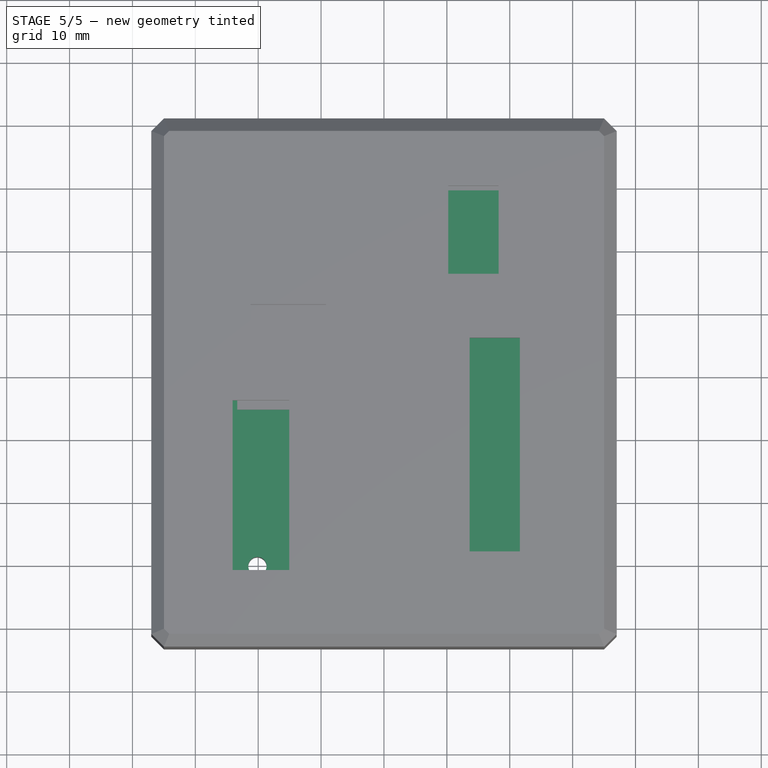
[diagram: stage 5 of 5 — top view after this stage's code; geometry added in this stage tinted green]
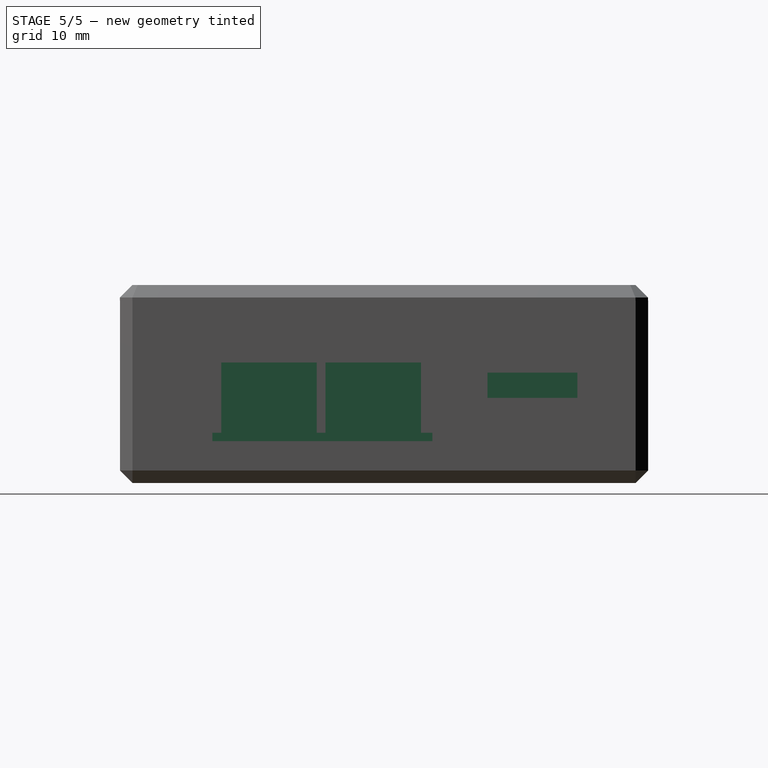
[diagram: stage 5 of 5 — right view after this stage's code; geometry added in this stage tinted green]
FEATURE [Sketcher::SketchObject] Sketch
  sketch-geometry (12):
    g0: LineSegment StartX=-20.1243 StartY=24.6 StartZ=0 EndX=20.1243 EndY=24.6 EndZ=0
    g1: LineSegment StartX=24.6 StartY=20.1243 StartZ=0 EndX=24.6 EndY=-20.1243 EndZ=0
    g2: LineSegment StartX=20.1243 StartY=-24.6 StartZ=0 EndX=-20.1243 EndY=-24.6 EndZ=0
    g3: LineSegment StartX=-24.6 StartY=-20.1243 StartZ=0 EndX=-24.6 EndY=20.1243 EndZ=0
    g4: ArcOfCircle CenterX=-20.1243 CenterY=20.1243 CenterZ=0 NormalX=0 NormalY=0 NormalZ=1 Radius=4.47574 StartAngle=1.5708 EndAngle=3.14159
    g5: ArcOfCircle CenterX=20.1243 CenterY=20.1243 CenterZ=0 NormalX=0 NormalY=0 NormalZ=1 Radius=4.47574 StartAngle=0 EndAngle=1.5708
    g6: ArcOfCircle CenterX=20.1243 CenterY=-20.1243 CenterZ=0 NormalX=0 NormalY=0 NormalZ=1 Radius=4.47574 StartAngle=4.71239 EndAngle=6.28319
    g7: ArcOfCircle CenterX=-20.1243 CenterY=-20.1243 CenterZ=0 NormalX=0 NormalY=0 NormalZ=1 Radius=4.47574 StartAngle=3.14159 EndAngle=4.71239
    g8: Circle CenterX=-20.1243 CenterY=20.1243 CenterZ=0 NormalX=0 NormalY=0 NormalZ=1 Radius=1.46
    g9: Circle CenterX=20.1243 CenterY=20.1243 CenterZ=0 NormalX=0 NormalY=0 NormalZ=1 Radius=1.46
    g10: Circle CenterX=20.1243 CenterY=-20.1243 CenterZ=0 NormalX=0 NormalY=0 NormalZ=1 Radius=1.46
    g11: Circle CenterX=-20.1243 CenterY=-20.1243 CenterZ=0 NormalX=0 NormalY=0 NormalZ=1 Radius=1.46
  constraints (28):
    c: Horizontal(g0)
    c: Horizontal(g2)
    c: Vertical(g1)
    c: Vertical(g3)
    c: Tangent(g3,g4) = 1.5708
    c: Tangent(g0,g4) = 1.5708
    c: Tangent(g0,g5) = 1.5708
    c: Tangent(g1,g5) = 1.5708
    c: Tangent(g1,g6) = 1.5708
    c: Tangent(g2,g6) = 1.5708
    c: Tangent(g2,g7) = 1.5708
    c: Tangent(g3,g7) = 1.5708
    c: Equal(g0,g3)
    c: Equal(g3,g1)
    c: Equal(g1,g2)
    c: Equal(g4,g7)
    c: Symmetric(g7,g5,g-1)
    c: Symmetric(g4,g6,g-1)
    c: Coincident(g8,g4)
    c: Coincident(g9,g5)
    c: Coincident(g10,g6)
    c: Coincident(g11,g7)
    c: Equal(g8,g11)
    c: Equal(g11,g10)
    c: Equal(g10,g9)
    c: Radius(g8) = 1.46
    c: Distance(g4,g6) = 56.92
    c: DistanceX(g3,g1) = 49.2
FEATURE [PartDesign::Pad] Pad
  Length = 1.5
  Length2 = 100
  Reversed = true
  Sketch = -> Sketch
  Type = 0
FEATURE [Part::Feature] Shape
  Placement = pos=(17.54,-12.0998,0) rot=(0,0,1;0rad)
  shape: bbox 8.348 x 10.6 x 13.8 mm, 106 faces, 5 solids (baked)
FEATURE [Part::Feature] Shape001
  Placement = pos=(17.54,-7.08795,0) rot=(0,0,1;0rad)
  shape: bbox 8.348 x 10.6 x 13.8 mm, 106 faces, 5 solids (baked)
FEATURE [Part::Feature] Shape002
  Placement = pos=(17.54,4.42953,0) rot=(0,0,1;0rad)
  shape: bbox 8.348 x 10.6 x 13.8 mm, 106 faces, 5 solids (baked)
FEATURE [Part::Feature] Shape003
  Placement = pos=(17.54,9.44548,0) rot=(0,0,1;0rad)
  shape: bbox 8.348 x 10.6 x 13.8 mm, 106 faces, 5 solids (baked)
FEATURE [Part::Box] Box  label="relay1"
  Height = 15.6
  Length = 18.85
  Placement = pos=(-5.5322,-0.616124,0) rot=(0,0,1;0rad)
  Width = 15.2
FEATURE [Part::Box] Box001  label="relay2"
  Height = 15.6
  Length = 18.85
  Placement = pos=(-5.5322,-17.1884,0) rot=(0,0,1;0rad)
  Width = 15.2
FEATURE [Part::Feature] Fusion003001  label="arduinoNano"
  Placement = pos=(3.56996,33.3006,2.49889) rot=(0.57735,-0.57735,0.57735;4.18879rad)
  shape: bbox 44.84 x 17.78 x 17.97 mm, 1500 faces (baked)
FEATURE [Sketcher::SketchObject] Sketch002
  ExternalGeometry = -> [Pad001]
  Placement = pos=(0,0,5.55) rot=(0,0,1;0rad)
  Support = -> Pad001 [Face8]
  sketch-geometry (4):
    g0: LineSegment StartX=-19.1279 StartY=39.4565 StartZ=0 EndX=24.8721 EndY=39.4565 EndZ=0
    g1: LineSegment StartX=24.8721 StartY=39.4565 StartZ=0 EndX=24.8721 EndY=25.1565 EndZ=0
    g2: LineSegment StartX=24.8721 StartY=25.1565 StartZ=0 EndX=-19.1279 EndY=25.1565 EndZ=0
    g3: LineSegment StartX=-19.1279 StartY=25.1565 StartZ=0 EndX=-19.1279 EndY=39.4565 EndZ=0
  constraints (12):
    c: Coincident(g0,g1)
    c: Coincident(g1,g2)
    c: Coincident(g2,g3)
    c: Coincident(g3,g0)
    c: Horizontal(g0)
    c: Horizontal(g2)
    c: Vertical(g1)
    c: Vertical(g3)
    c: DistanceX(g0) = 44
    c: DistanceY(g3) = 14.3
    c: DistanceY(g-3,g0) = -3.95
    c: DistanceX(g0,g-3) = 0.5
FEATURE [PartDesign::Pad] Pad002
  Length = 4
  Length2 = 100
  Placement = pos=(0,0,4.8) rot=(0,0,1;0rad)
  Sketch = -> Sketch002
  Type = 0
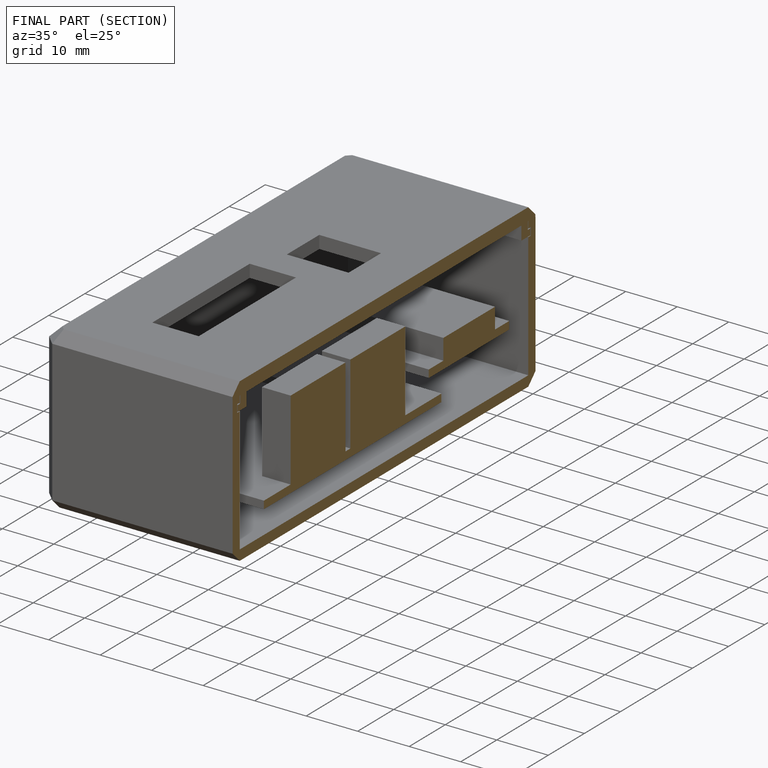
[diagram: finished part — half-section view (interior)]
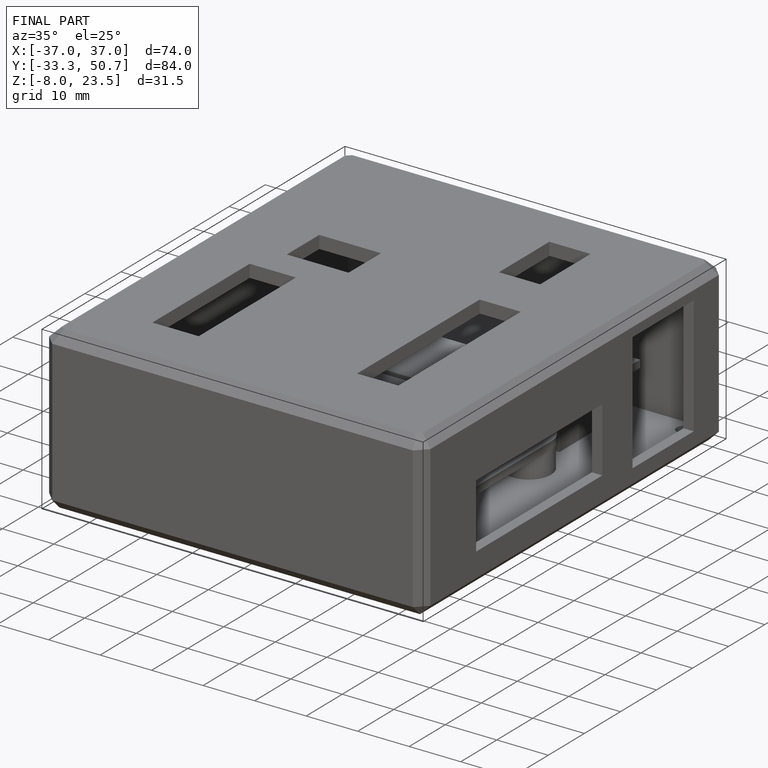
[diagram: finished part — iso view with bounding-box wireframe]
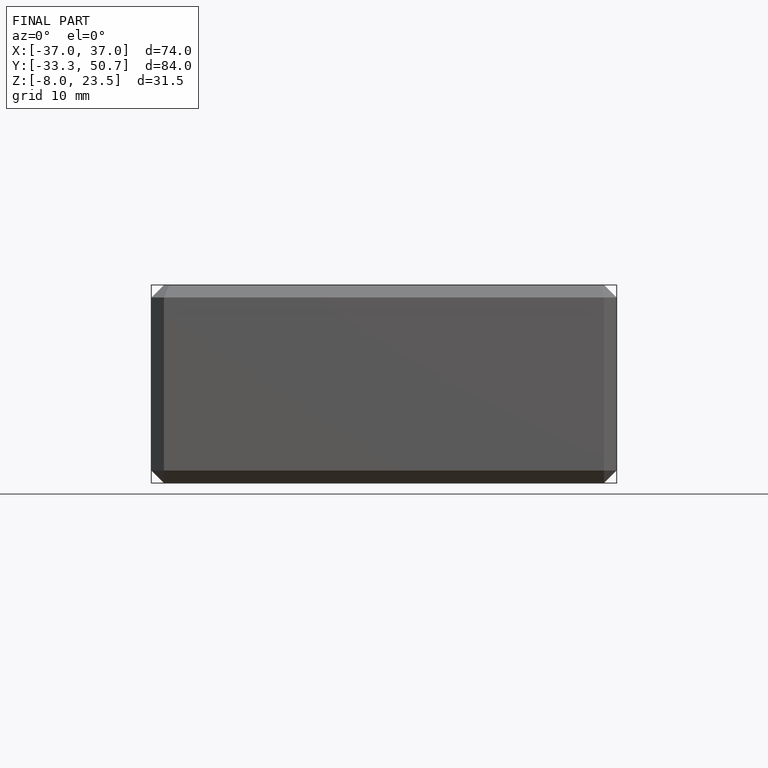
[diagram: finished part — front view with bounding-box wireframe]
